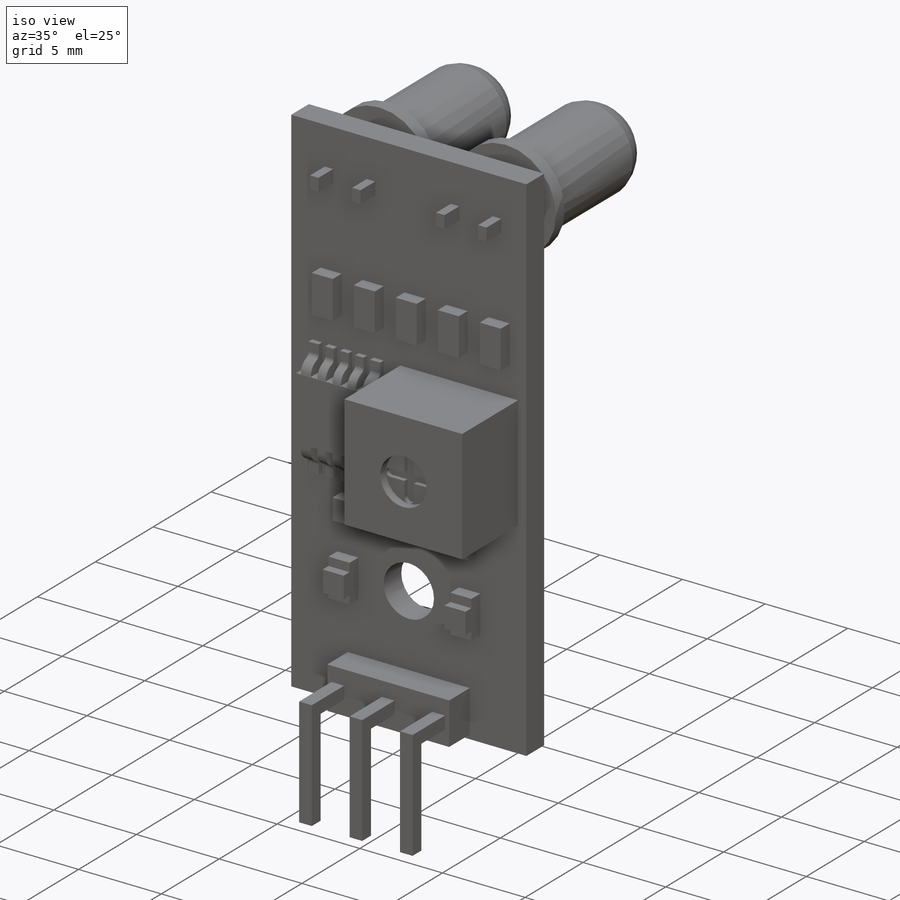
[diagram: iso view]
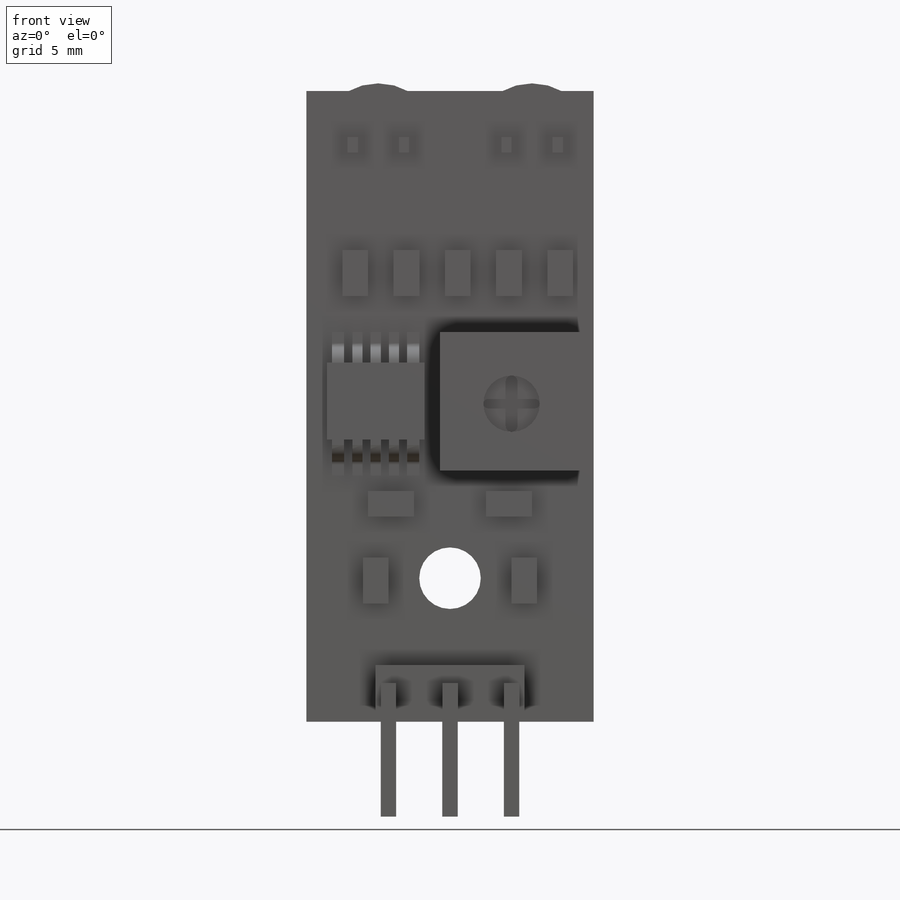
[diagram: front view]
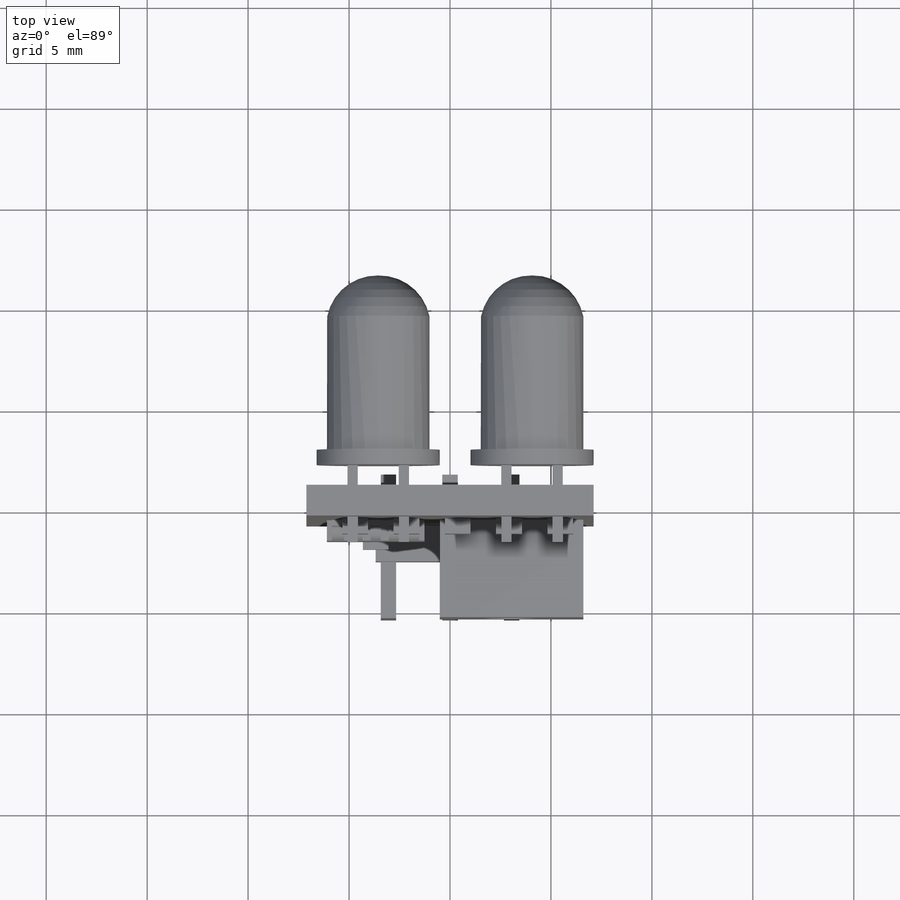
[diagram: top view]
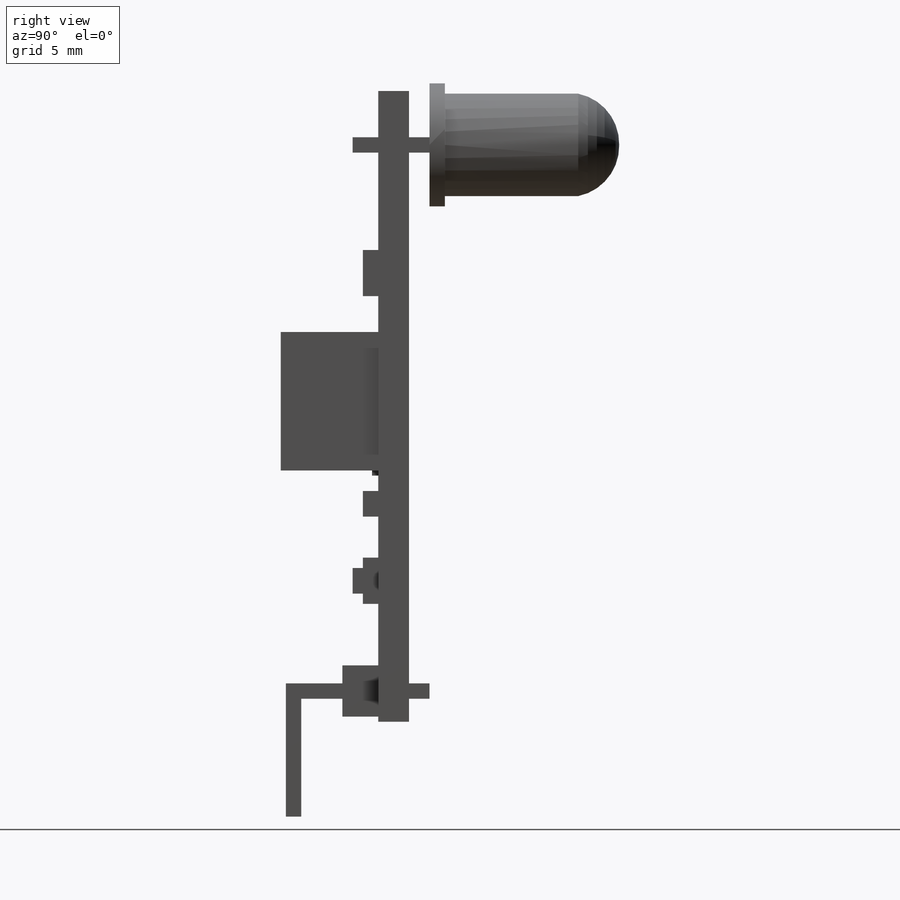
[diagram: right view]
SOLIDWORKS PART (.sldprt)
format: sldprt  version: not decoded by parser v0  size: 965,120 bytes
history: native  units: mm
features: sketch x18, extrude x12, pattern_linear x6, cut_extrude x5, plane x2, fillet x2, material x1, revolve x1 (+13 scaffold rows collapsed)
feature tree (60):
  scaffold x13  (default folders/planes/origin — collapsed)
  material  "Material <not specified>"
  sketch  "Sketch1"  dims[D1=31.242mm D2=14.224mm]
  extrude  "Boss-Extrude1"  Depth=1.524mm
  sketch  "Sketch2"  dims[c1.D1=~6.956584mm c1.D2=7.366mm c1.D3=2.54mm c1.D4=~6.956584mm c2.D4=90.0deg c3.D4=3.683mm c3.D5=0.254mm]
  extrude  "Boss-Extrude2"  Depth=1.778mm
  sketch  "Sketch5"  dims[D1=0.381mm D2=0.381mm D3=0.254mm D4=0.762mm]
  extrude  "Boss-Extrude3"  Depth=2.032mm
  plane  "Plane1"  Offset=0mm
  sketch  "Sketch6"  dims[D1=0.762mm D2=0.762mm]
  extrude  "Boss-Extrude4"  Depth=6.604mm
  pattern_linear  "LPattern1"  Count1=3 Count2=1 Spacing1=3.048mm Spacing2=2.54mm
  sketch  "Sketch8"  dims[c1.D1=3.048mm c1.D3=3.048mm c1.D2=~6.258441mm c2.D3=7.112mm]
  cut_extrude  "Cut-Extrude2"  [1 undecoded]
  sketch  "Sketch9"  dims[c1.D3=3.048mm c1.D1=1.27mm c1.D2=2.286mm c2.D3=3.048mm c2.D4=5.842mm]
  extrude  "Boss-Extrude5"  Depth=0.762mm
  sketch  "Sketch10"  dims[D1=0.508mm D2=1.27mm]
  extrude  "Boss-Extrude6"  Depth=0.508mm
  pattern_linear  "LPattern2"  Count1=2 Count2=1 Spacing1=7.366mm Spacing2=2.54mm
  sketch  "Sketch12"  dims[D1=1.27mm D2=2.286mm D3=3.048mm D4=10.16mm]
  extrude  "Boss-Extrude7"  Depth=0.762mm
  pattern_linear  "LPattern3"  Count1=2 Count2=1 Spacing1=5.842mm Spacing2=2.54mm
  sketch  "Sketch16"  dims[D1=7.112mm D2=6.858mm D3=0.508mm D4=12.446mm]
  extrude  "Boss-Extrude9"  Depth=4.826mm
  sketch  "Sketch17"  dims[c1.D1=2.794mm c1.D2=2.794mm c1.D3=2.794mm c2.D2=3.556mm c2.D3=3.302mm]
  cut_extrude  "Cut-Extrude3"  Depth=0.508mm
  sketch  "Sketch18"  dims[c1.D8=~0.290999mm c1.D9=~0.229851mm c1.D10=~0.290999mm c1.D11=~0.229851mm c1.D1=~0.876149mm c1.D2=~0.876149mm c1.D3=~0.876149mm c1.D4=~0.876149mm c1.D5=~0.876149mm c1.D6=~0.876149mm c1.D7=~0.876149mm c2.D8=~1.106001mm c2.D12=~0.459703mm c2.D13=~0.581998mm c2.D14=~0.229851mm]
  cut_extrude  "Cut-Extrude4"  Depth=0.254mm
  sketch  "Sketch19"  dims[D1=2.286mm D2=1.27mm D3=1.016mm D4=7.874mm]
  extrude  "Boss-Extrude10"  Depth=0.762mm
  pattern_linear  "LPattern4"  Count1=5 Count2=1 Spacing1=2.54mm Spacing2=2.54mm
  sketch  "Sketch20"  dims[D1=0.508mm D2=0.762mm D3=2.286mm D4=1.524mm]
  sketch  "Sketch31"  dims[D1=4.826mm D2=3.81mm D3=1.016mm D4=13.462mm]
  extrude  "Boss-Extrude14"  Depth=1.016mm
  sketch  "Sketch32"  dims[D1=4.318mm D2=7.112mm D3=11.938mm]
  extrude  "Boss-Extrude15"  Depth=0.9906mm
  sketch  "Sketch33"  dims[D1=0.762mm D2=0.762mm]
  cut_extrude  "Cut-Extrude5"  Depth=0.6858mm
  fillet  "Fillet4"  Radius=0.762mm
  fillet  "Fillet5"  Radius=0.254mm
  extrude  "Boss-Extrude16"  Depth=2.54mm
  pattern_linear  "LPattern6"  Count1=2 Count2=1 Spacing1=2.54mm Spacing2=50mm
  plane  "Plane2"  Offset=12.954mm
  sketch  "Sketch37"  dims[D6=2.54mm D1=9.398mm D2=6.604mm D3=0.508mm D4=0.762mm D5=3.048mm]
  revolve  "Revolve4"  Angle=360deg
  pattern_linear  "LPattern9"  Count1=2 Count2=1 Spacing1=7.62mm Spacing2=50mm
  sketch  "Sketch38"  dims[D1=0.4mm D2=0.6mm D4=0.6mm D3=4.0]
  cut_extrude  "Cut-Extrude6"  [1 undecoded]
decode coverage: 42 of 44 modeling features carry decoded parameters
note: ~ marks probable driven/reference dimensions
note: 2 parameter values undecoded
note: suppression state not decoded; provenance and decode notes live in map.json
